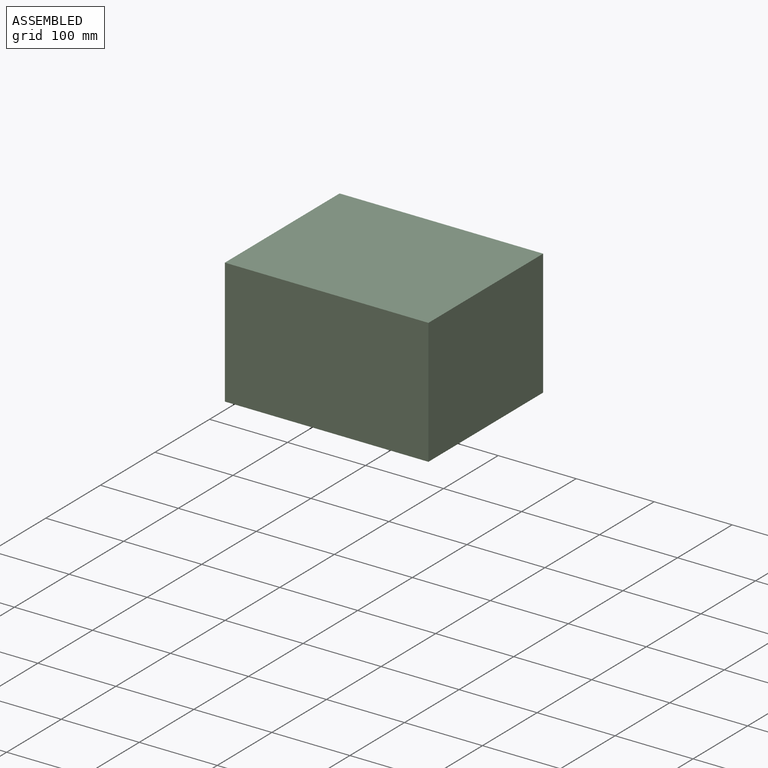
[diagram: assembled view]
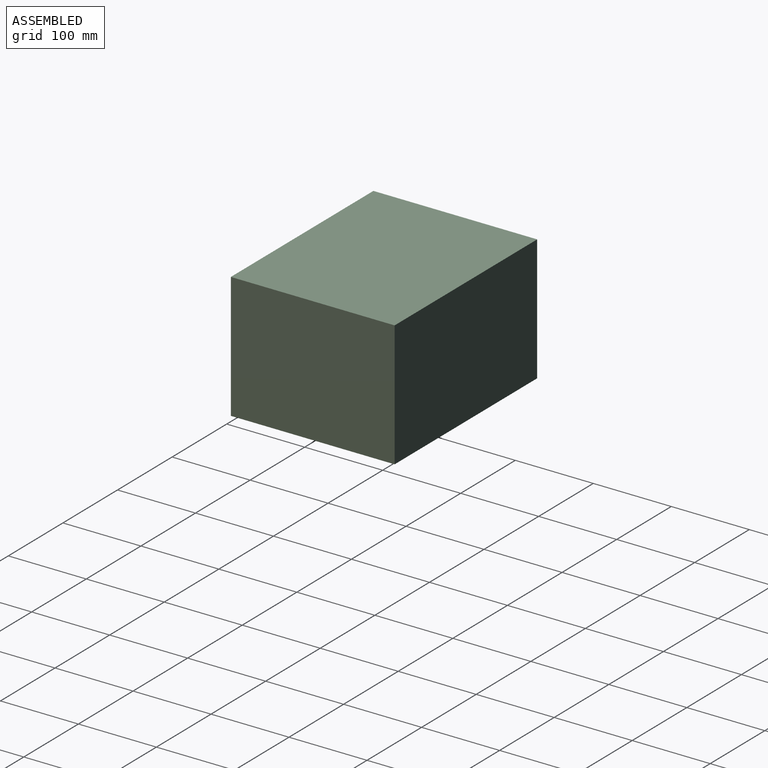
[diagram: assembled view, second angle]
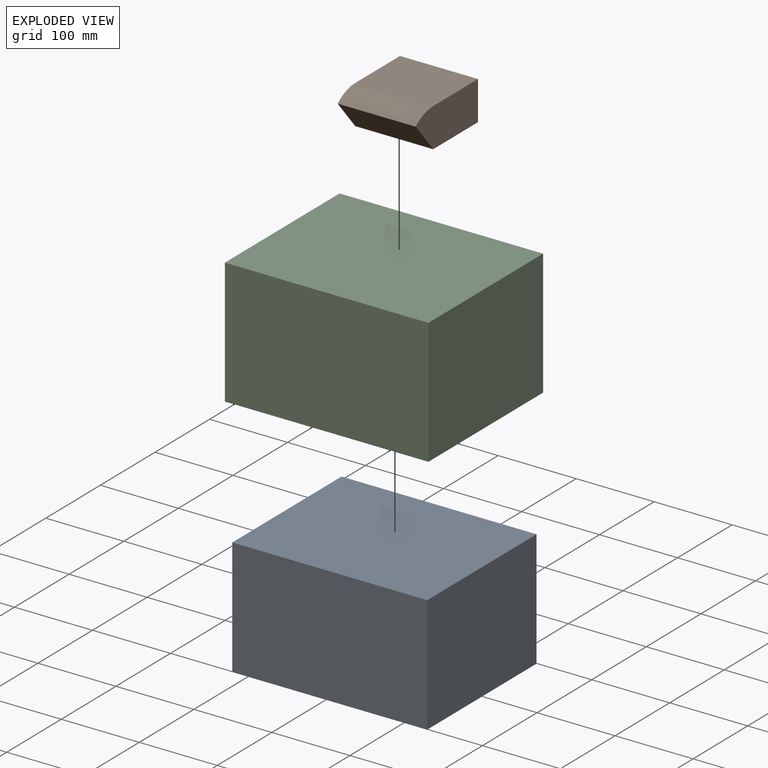
[diagram: exploded view]
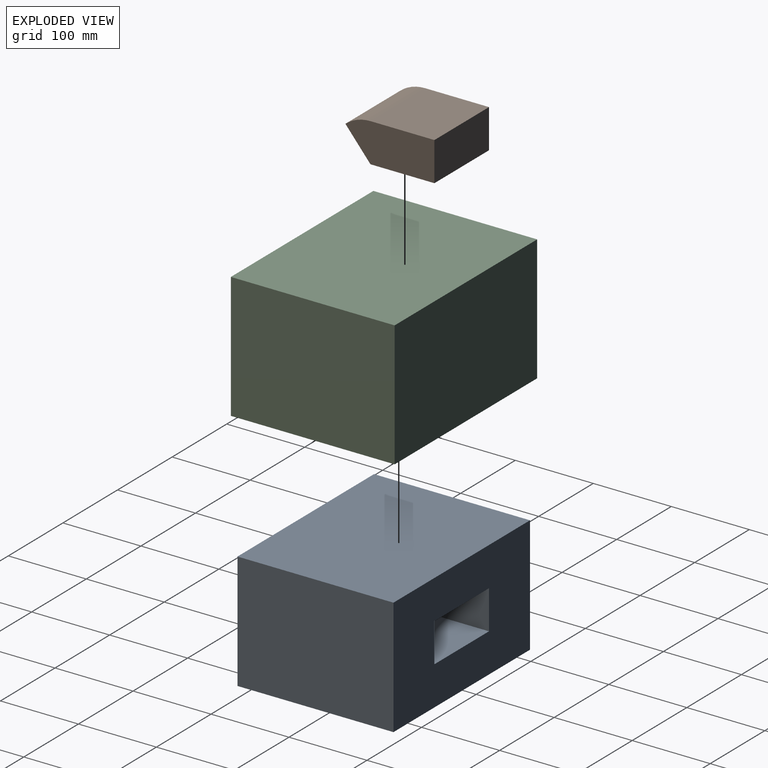
[diagram: exploded view, second angle]
ASSEMBLY  parts=3 mates=6
PART A: 12 faces, bbox 250x200x150 mm
  f0: plane 200x150mm, normal (1,0,0), area 30000mm2, adj f1,f3,f4,f5
  f1: plane 250x200mm, normal (0,0,1), area 50000mm2, adj f0,f2,f4,f5
  f2: plane 200x150mm, normal (-1,0,0), area 30000mm2, adj f1,f3,f4,f5
  f3: plane 250x200mm, normal (0,0,-1), area 50000mm2, adj f0,f2,f4,f5
  f4: plane 250x150mm, normal (0,-1,0), area 37500mm2, adj f0,f1,f2,f3
  f5: plane 250x150mm, normal (0,1,0), area 32500mm2, adj f0,f1,f2,f3,f6,f7,f8,f9
  f6: plane 114.14x50mm, normal (-1,0,0), area 4972.7mm2, adj f5,f7,f9,f10,f11
  f7: plane 100x82mm, normal (0,0,-1), area 8200mm2, adj f5,f6,f8,f10
  f8: plane 114.14x50mm, normal (1,0,0), area 4972.7mm2, adj f5,f7,f9,f10,f11
  f9: plane 100x82mm, normal (0,0,1), area 8200mm2, adj f5,f6,f8,f11
  f10: cylinder r=50mm len=100mm, axis (-1,0,0), area 3490.7mm2, adj f6,f7,f8,f11
  f11: plane 100x38.3mm, normal (0,0.77,0.64), area 5000mm2, adj f6,f8,f9,f10
PART B: 7 faces, bbox 100x114.1x50 mm
  f0: plane 114.14x50mm, normal (1,0,0), area 4972.7mm2, adj f1,f3,f4,f5,f6
  f1: plane 100x82mm, normal (0,0,1), area 8200mm2, adj f0,f2,f4,f5
  f2: plane 114.14x50mm, normal (-1,0,0), area 4972.7mm2, adj f1,f3,f4,f5,f6
  f3: plane 100x82mm, normal (0,0,-1), area 8200mm2, adj f0,f2,f4,f6
  f4: plane 100x50mm, normal (0,1,0), area 5000mm2, adj f0,f1,f2,f3
  f5: cylinder r=50mm len=100mm, axis (-1,0,0), area 3490.7mm2, adj f0,f1,f2,f6
  f6: plane 100x38.3mm, normal (0,-0.77,-0.64), area 5000mm2, adj f0,f2,f3,f5
PART C: 12 faces, bbox 261x210x161 mm
  f0: plane 261x210mm, normal (0,0,-1), area 54810mm2, adj f1,f3,f4,f5
  f1: plane 210x161mm, normal (1,0,0), area 33810mm2, adj f0,f2,f4,f5
  f2: plane 261x210mm, normal (0,0,1), area 54810mm2, adj f1,f3,f4,f5
  f3: plane 210x161mm, normal (-1,0,0), area 33810mm2, adj f0,f2,f4,f5
  f4: plane 261x161mm, normal (0,1,0), area 42021mm2, adj f0,f1,f2,f3
  f5: plane 261x161mm, normal (0,-1,0), area 42021mm2, adj f0,f1,f2,f3
  f6: plane 251x200mm, normal (0,0,1), area 50200mm2, adj f8,f9,f10,f11
  f7: plane 251x200mm, normal (0,0,-1), area 50200mm2, adj f8,f9,f10,f11
  f8: plane 251x151mm, normal (0,-1,0), area 37901mm2, adj f6,f7,f10,f11
  f9: plane 251x151mm, normal (0,1,0), area 37901mm2, adj f6,f7,f10,f11
  f10: plane 200x151mm, normal (1,0,0), area 30200mm2, adj f6,f7,f8,f9
  f11: plane 200x151mm, normal (-1,0,0), area 30200mm2, adj f6,f7,f8,f9
PLACE A t=(-188.43,89.57,115)mm
PLACE B t=(-188.43,89.57,115)mm
PLACE C t=(-188.93,89.57,114.5)mm
MATE planar B.f1 <-> A.f7  axis (0,0,1) through (-188.43,89.57,140)mm
MATE planar A.f1 <-> C.f7  axis (0,0,1) through (-188.43,-10.43,190)mm
MATE planar A.f5 <-> B.f4  axis (0,1,0) through (-188.43,89.57,115)mm
MATE planar A.f0 <-> C.f11  axis (1,0,0) through (-63.43,-10.43,115)mm
MATE planar A.f6 <-> B.f0  axis (-1,0,0) through (-138.43,39.41,116)mm
MATE planar C.f8 <-> A.f5  axis (0,-1,0) through (-63.43,89.57,114.5)mm
